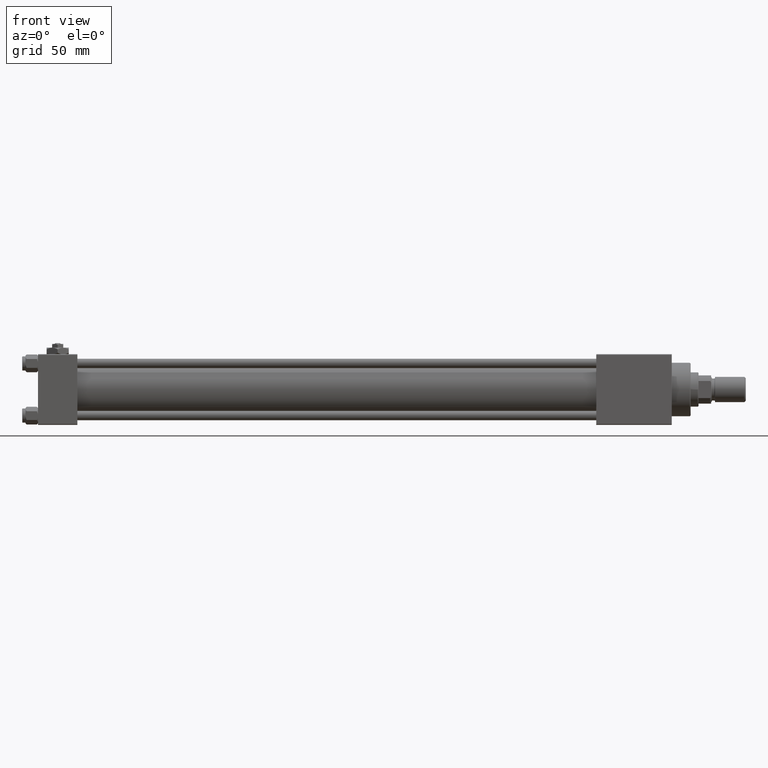
[diagram: clean part render]
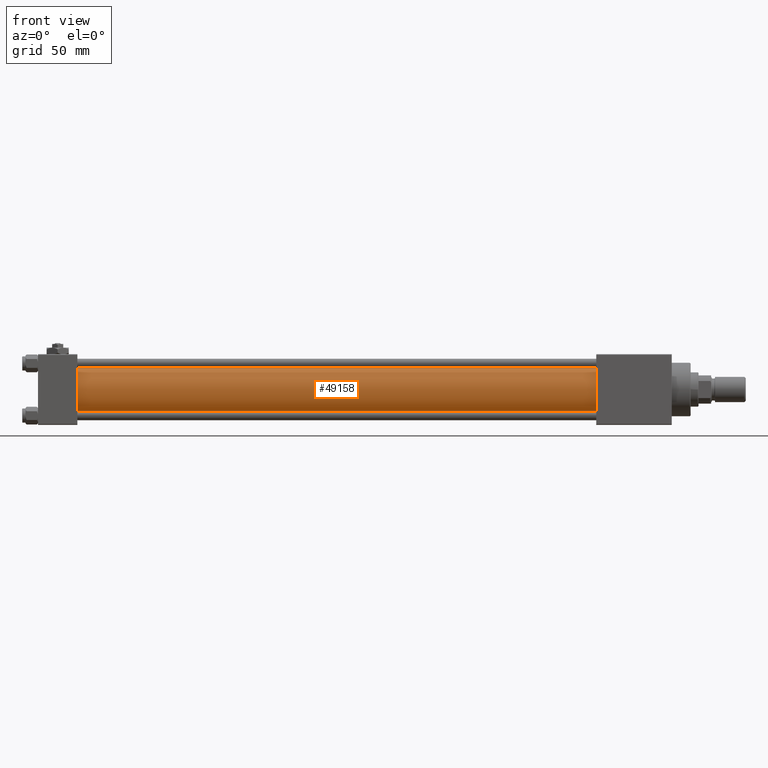
[diagram: same view with one face highlighted and labeled with its STEP entity id]
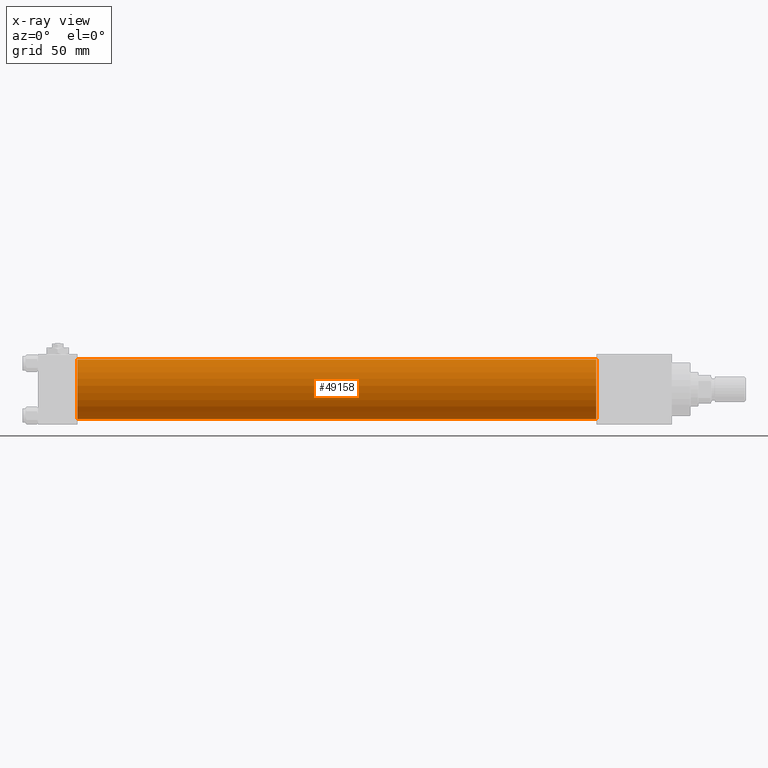
[diagram: x-ray of the same camera — body ghosted, the highlighted face saturated]
A machine part, front view. The second image highlights one B-rep face of the part: STEP entity #49158.
The next image is the same camera in x-ray: the body ghosted, the highlighted face saturated — about 0% of this face is hidden behind the body in this view.
In plain terms, the highlighted cylindrical surface (edge-blend (fillet) strip) has radius 19 mm, axis along (-1, -0, -0).
Its self-contained STEP definition (entity closure, byte-faithful):
#248 = CIRCLE ( 'NONE', #29930, 19.00000000000000000 ) ;
#1162 = AXIS2_PLACEMENT_3D ( 'NONE', #28400, #40114, #8226 ) ;
#1611 = ORIENTED_EDGE ( 'NONE', *, *, #7008, .T. ) ;
#2368 = CARTESIAN_POINT ( 'NONE',  ( 355.0000000000000568, -2.602085213965210642E-15, 19.00000000000000000 ) ) ;
#3707 = LINE ( 'NONE', #36634, #7916 ) ;
#5066 = VECTOR ( 'NONE', #10077, 1000.000000000000000 ) ;
#6101 = CARTESIAN_POINT ( 'NONE',  ( 355.0000000000000568, -2.752562955852396712E-16, -19.00000000000000000 ) ) ;
#7008 = EDGE_CURVE ( 'NONE', #21769, #19149, #24511, .T. ) ;
#7916 = VECTOR ( 'NONE', #27866, 1000.000000000000000 ) ;
#8220 = ORIENTED_EDGE ( 'NONE', *, *, #21126, .F. ) ;
#8226 = DIRECTION ( 'NONE',  ( 0.000000000000000000, 0.000000000000000000, 1.000000000000000000 ) ) ;
#8699 = DIRECTION ( 'NONE',  ( 1.000000000000000000, -0.000000000000000000, 0.000000000000000000 ) ) ;
#10077 = DIRECTION ( 'NONE',  ( -1.000000000000000000, -0.000000000000000000, -0.000000000000000000 ) ) ;
#12441 = ORIENTED_EDGE ( 'NONE', *, *, #19357, .F. ) ;
#12473 = CYLINDRICAL_SURFACE ( 'NONE', #1162, 19.00000000000000000 ) ;
#14604 = LINE ( 'NONE', #50443, #5066 ) ;
#16989 = FACE_OUTER_BOUND ( 'NONE', #22249, .T. ) ;
#19149 = VERTEX_POINT ( 'NONE', #39253 ) ;
#19357 = EDGE_CURVE ( 'NONE', #30765, #41112, #248, .T. ) ;
#21126 = EDGE_CURVE ( 'NONE', #41112, #19149, #3707, .T. ) ;
#21183 = DIRECTION ( 'NONE',  ( 0.000000000000000000, 0.000000000000000000, 1.000000000000000000 ) ) ;
#21436 = DIRECTION ( 'NONE',  ( 0.000000000000000000, 0.000000000000000000, -1.000000000000000000 ) ) ;
#21769 = VERTEX_POINT ( 'NONE', #35981 ) ;
#22249 = EDGE_LOOP ( 'NONE', ( #8220, #12441, #34143, #1611 ) ) ;
#24511 = CIRCLE ( 'NONE', #28722, 19.00000000000000000 ) ;
#25406 = DIRECTION ( 'NONE',  ( 1.000000000000000000, 0.000000000000000000, 0.000000000000000000 ) ) ;
#27866 = DIRECTION ( 'NONE',  ( -1.000000000000000000, -0.000000000000000000, -0.000000000000000000 ) ) ;
#28400 = CARTESIAN_POINT ( 'NONE',  ( 355.0000000000000568, -2.602085213965210642E-15, 0.000000000000000000 ) ) ;
#28722 = AXIS2_PLACEMENT_3D ( 'NONE', #32345, #8699, #21183 ) ;
#29930 = AXIS2_PLACEMENT_3D ( 'NONE', #41094, #25406, #21436 ) ;
#30765 = VERTEX_POINT ( 'NONE', #2368 ) ;
#32345 = CARTESIAN_POINT ( 'NONE',  ( 25.00000000000002132, -2.602085213965210642E-15, 0.000000000000000000 ) ) ;
#34143 = ORIENTED_EDGE ( 'NONE', *, *, #40183, .T. ) ;
#35981 = CARTESIAN_POINT ( 'NONE',  ( 25.00000000000002132, -2.602085213965210642E-15, 19.00000000000000000 ) ) ;
#36634 = CARTESIAN_POINT ( 'NONE',  ( 355.0000000000000568, -2.752562955852396712E-16, -19.00000000000000000 ) ) ;
#39253 = CARTESIAN_POINT ( 'NONE',  ( 25.00000000000002132, -2.752562955852396712E-16, -19.00000000000000000 ) ) ;
#40114 = DIRECTION ( 'NONE',  ( -1.000000000000000000, -0.000000000000000000, -0.000000000000000000 ) ) ;
#40183 = EDGE_CURVE ( 'NONE', #30765, #21769, #14604, .T. ) ;
#41094 = CARTESIAN_POINT ( 'NONE',  ( 355.0000000000000568, -2.602085213965210642E-15, 0.000000000000000000 ) ) ;
#41112 = VERTEX_POINT ( 'NONE', #6101 ) ;
#49158 = ADVANCED_FACE ( 'NONE', ( #16989 ), #12473, .T. ) ;
#50443 = CARTESIAN_POINT ( 'NONE',  ( 355.0000000000000568, -2.602085213965210642E-15, 19.00000000000000000 ) ) ;